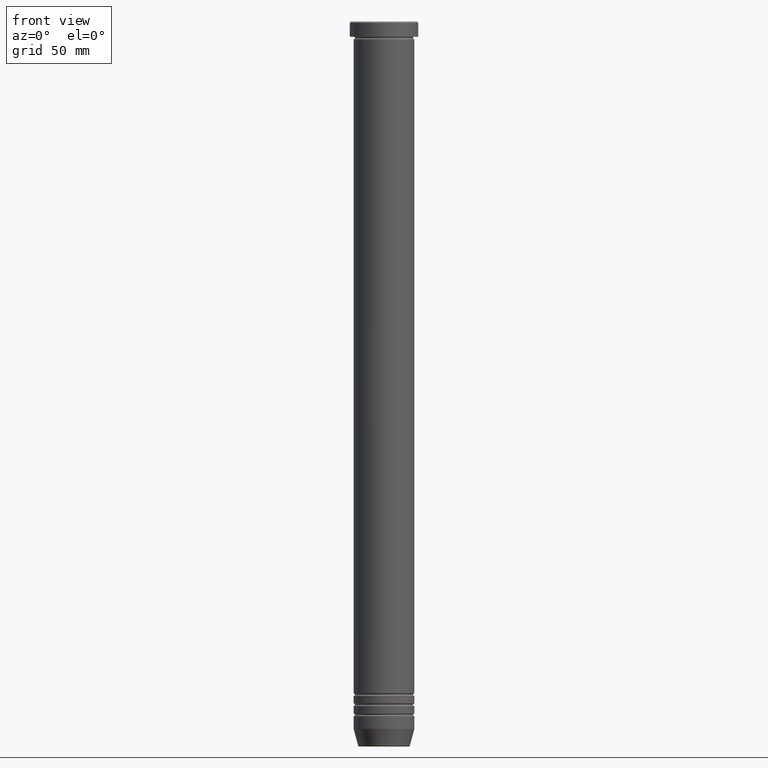
[diagram: clean part render]
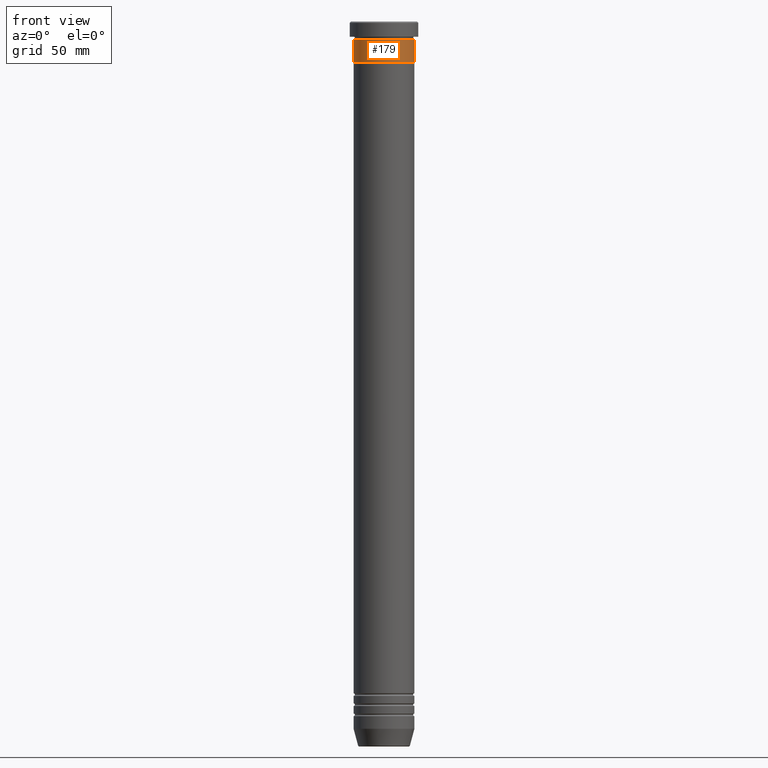
[diagram: same view with one face highlighted and labeled with its STEP entity id]
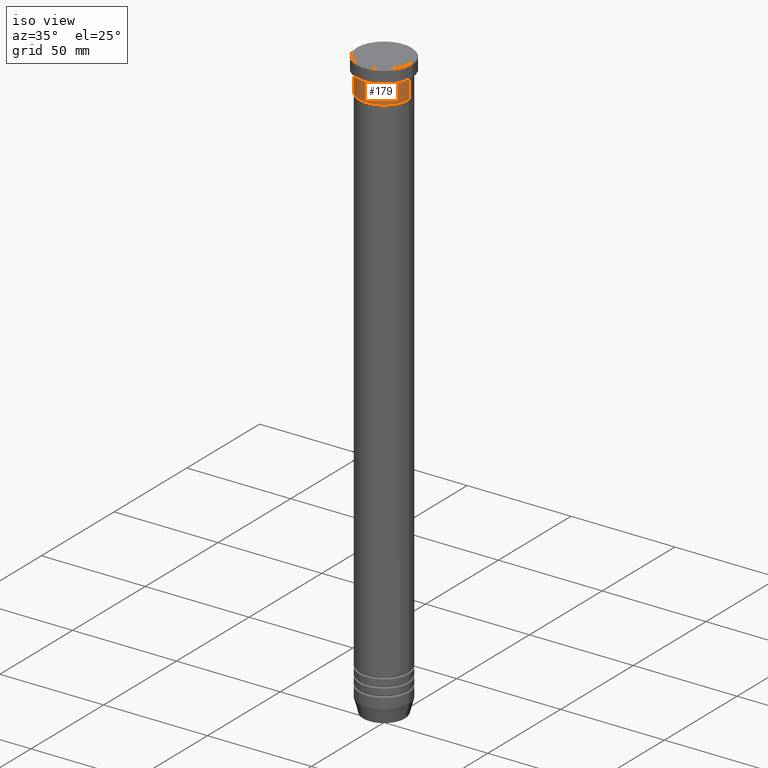
[diagram: same view with one face highlighted and labeled with its STEP entity id]
A machine part, front view. The second image highlights one B-rep face of the part: STEP entity #179.
A second angle (iso view) of the same face is appended — the face is thin or edge-on in the first view.
In plain terms, the highlighted cylindrical surface (edge-blend (fillet) strip) has radius 12 mm, axis along (-0, -0, 1).
Its self-contained STEP definition (entity closure, byte-faithful):
#3 = DIRECTION ( 'NONE',  ( -0.000000000000000000, -0.000000000000000000, 1.000000000000000000 ) ) ;
#64 = DIRECTION ( 'NONE',  ( 1.000000000000000000, 0.000000000000000000, 0.000000000000000000 ) ) ;
#66 = EDGE_CURVE ( 'NONE', #770, #93, #213, .T. ) ;
#72 = VERTEX_POINT ( 'NONE', #1014 ) ;
#81 = ORIENTED_EDGE ( 'NONE', *, *, #496, .F. ) ;
#85 = CARTESIAN_POINT ( 'NONE',  ( -12.00000000000000000, 1.469576158976823947E-15, -6.999999999999999112 ) ) ;
#93 = VERTEX_POINT ( 'NONE', #122 ) ;
#122 = CARTESIAN_POINT ( 'NONE',  ( 12.00000000000000000, 0.000000000000000000, -6.999999999999999112 ) ) ;
#155 = CYLINDRICAL_SURFACE ( 'NONE', #640, 12.00000000000000000 ) ;
#177 = DIRECTION ( 'NONE',  ( -0.000000000000000000, -0.000000000000000000, 1.000000000000000000 ) ) ;
#179 = ADVANCED_FACE ( 'NONE', ( #985 ), #155, .T. ) ;
#199 = CARTESIAN_POINT ( 'NONE',  ( 0.000000000000000000, 0.000000000000000000, -16.00000000000000000 ) ) ;
#201 = LINE ( 'NONE', #562, #232 ) ;
#213 = LINE ( 'NONE', #1087, #325 ) ;
#225 = ORIENTED_EDGE ( 'NONE', *, *, #795, .T. ) ;
#230 = CARTESIAN_POINT ( 'NONE',  ( 0.000000000000000000, 0.000000000000000000, -6.999999999999999112 ) ) ;
#232 = VECTOR ( 'NONE', #570, 1000.000000000000000 ) ;
#249 = CARTESIAN_POINT ( 'NONE',  ( 0.000000000000000000, 0.000000000000000000, 0.000000000000000000 ) ) ;
#325 = VECTOR ( 'NONE', #920, 1000.000000000000000 ) ;
#383 = CIRCLE ( 'NONE', #611, 12.00000000000000000 ) ;
#432 = ORIENTED_EDGE ( 'NONE', *, *, #66, .T. ) ;
#496 = EDGE_CURVE ( 'NONE', #72, #527, #201, .T. ) ;
#527 = VERTEX_POINT ( 'NONE', #85 ) ;
#562 = CARTESIAN_POINT ( 'NONE',  ( -12.00000000000000000, 1.469576158976823947E-15, 0.000000000000000000 ) ) ;
#570 = DIRECTION ( 'NONE',  ( -0.000000000000000000, -0.000000000000000000, 1.000000000000000000 ) ) ;
#611 = AXIS2_PLACEMENT_3D ( 'NONE', #230, #684, #64 ) ;
#640 = AXIS2_PLACEMENT_3D ( 'NONE', #249, #177, #975 ) ;
#684 = DIRECTION ( 'NONE',  ( -0.000000000000000000, -0.000000000000000000, 1.000000000000000000 ) ) ;
#713 = ORIENTED_EDGE ( 'NONE', *, *, #900, .F. ) ;
#732 = CIRCLE ( 'NONE', #1054, 12.00000000000000000 ) ;
#770 = VERTEX_POINT ( 'NONE', #1086 ) ;
#780 = EDGE_LOOP ( 'NONE', ( #81, #225, #432, #713 ) ) ;
#795 = EDGE_CURVE ( 'NONE', #72, #770, #732, .T. ) ;
#896 = DIRECTION ( 'NONE',  ( 1.000000000000000000, 0.000000000000000000, 0.000000000000000000 ) ) ;
#900 = EDGE_CURVE ( 'NONE', #527, #93, #383, .T. ) ;
#920 = DIRECTION ( 'NONE',  ( -0.000000000000000000, -0.000000000000000000, 1.000000000000000000 ) ) ;
#975 = DIRECTION ( 'NONE',  ( 1.000000000000000000, 0.000000000000000000, 0.000000000000000000 ) ) ;
#985 = FACE_OUTER_BOUND ( 'NONE', #780, .T. ) ;
#1014 = CARTESIAN_POINT ( 'NONE',  ( -12.00000000000000000, 1.469576158976823947E-15, -16.00000000000000000 ) ) ;
#1054 = AXIS2_PLACEMENT_3D ( 'NONE', #199, #3, #896 ) ;
#1086 = CARTESIAN_POINT ( 'NONE',  ( 12.00000000000000000, 0.000000000000000000, -16.00000000000000000 ) ) ;
#1087 = CARTESIAN_POINT ( 'NONE',  ( 12.00000000000000000, 0.000000000000000000, 0.000000000000000000 ) ) ;